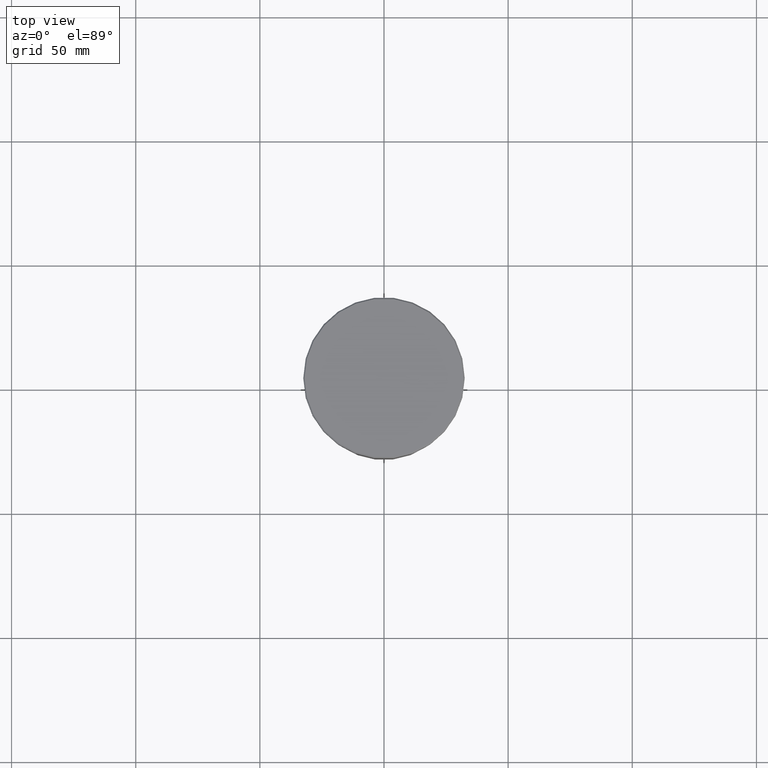
[diagram: clean part render]
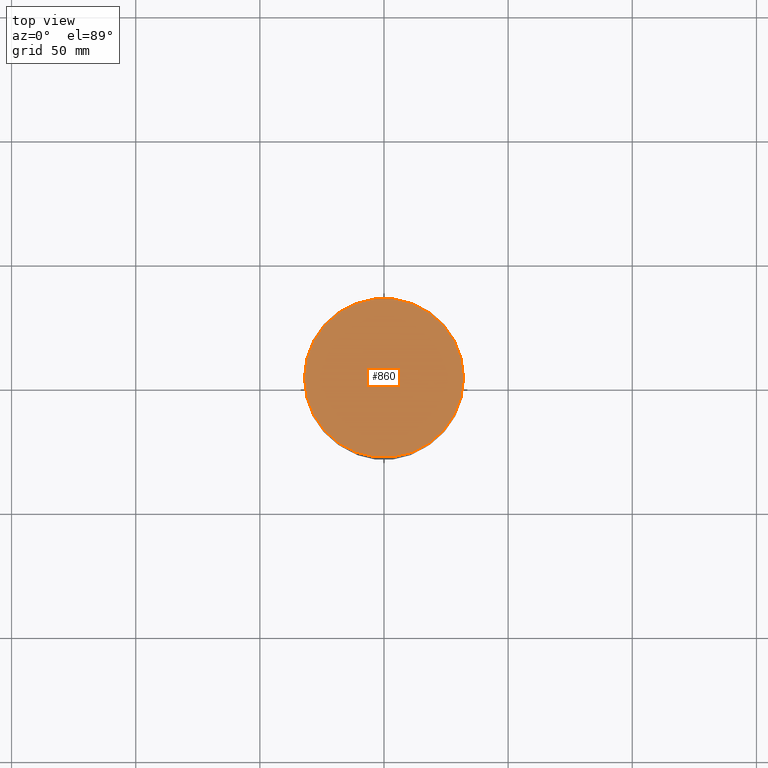
[diagram: same view with one face highlighted and labeled with its STEP entity id]
A machine part, top view. The second image highlights one B-rep face of the part: STEP entity #860.
In plain terms, the highlighted planar face has unit normal (0, -0, 1).
Its self-contained STEP definition (entity closure, byte-faithful):
#65 = AXIS2_PLACEMENT_3D ( 'NONE', #922, #1105, #903 ) ;
#80 = DIRECTION ( 'NONE',  ( 1.000000000000000000, 0.000000000000000000, 0.000000000000000000 ) ) ;
#97 = VERTEX_POINT ( 'NONE', #864 ) ;
#258 = PLANE ( 'NONE',  #1110 ) ;
#296 = CARTESIAN_POINT ( 'NONE',  ( -32.00000000000000000, 0.000000000000000000, 0.000000000000000000 ) ) ;
#318 = DIRECTION ( 'NONE',  ( -0.000000000000000000, -0.000000000000000000, 1.000000000000000000 ) ) ;
#332 = CIRCLE ( 'NONE', #65, 32.00000000000000000 ) ;
#346 = CARTESIAN_POINT ( 'NONE',  ( 0.000000000000000000, 0.000000000000000000, 0.000000000000000000 ) ) ;
#354 = FACE_OUTER_BOUND ( 'NONE', #911, .T. ) ;
#422 = DIRECTION ( 'NONE',  ( 1.000000000000000000, 0.000000000000000000, 0.000000000000000000 ) ) ;
#725 = AXIS2_PLACEMENT_3D ( 'NONE', #965, #318, #422 ) ;
#860 = ADVANCED_FACE ( 'NONE', ( #354 ), #258, .T. ) ;
#864 = CARTESIAN_POINT ( 'NONE',  ( 32.00000000000000000, 3.949485927250214839E-15, 0.000000000000000000 ) ) ;
#892 = DIRECTION ( 'NONE',  ( 0.000000000000000000, -0.000000000000000000, 1.000000000000000000 ) ) ;
#893 = EDGE_CURVE ( 'NONE', #1064, #97, #332, .T. ) ;
#902 = ORIENTED_EDGE ( 'NONE', *, *, #1174, .T. ) ;
#903 = DIRECTION ( 'NONE',  ( 1.000000000000000000, 0.000000000000000000, 0.000000000000000000 ) ) ;
#911 = EDGE_LOOP ( 'NONE', ( #984, #902 ) ) ;
#922 = CARTESIAN_POINT ( 'NONE',  ( 0.000000000000000000, 0.000000000000000000, 0.000000000000000000 ) ) ;
#965 = CARTESIAN_POINT ( 'NONE',  ( 0.000000000000000000, 0.000000000000000000, 0.000000000000000000 ) ) ;
#984 = ORIENTED_EDGE ( 'NONE', *, *, #893, .T. ) ;
#1064 = VERTEX_POINT ( 'NONE', #296 ) ;
#1105 = DIRECTION ( 'NONE',  ( -0.000000000000000000, -0.000000000000000000, 1.000000000000000000 ) ) ;
#1110 = AXIS2_PLACEMENT_3D ( 'NONE', #346, #892, #80 ) ;
#1172 = CIRCLE ( 'NONE', #725, 32.00000000000000000 ) ;
#1174 = EDGE_CURVE ( 'NONE', #97, #1064, #1172, .T. ) ;